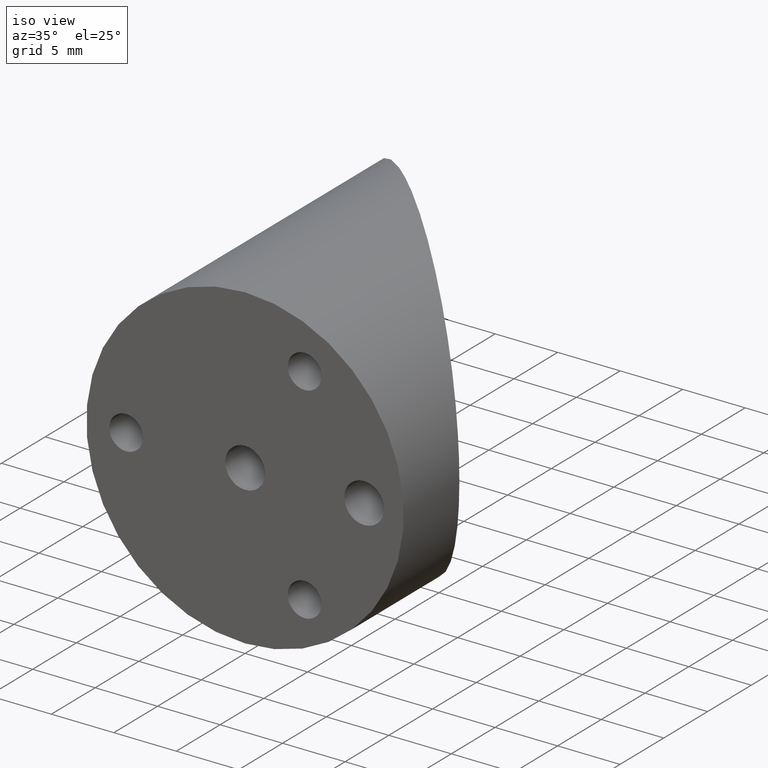
[diagram: clean part render]
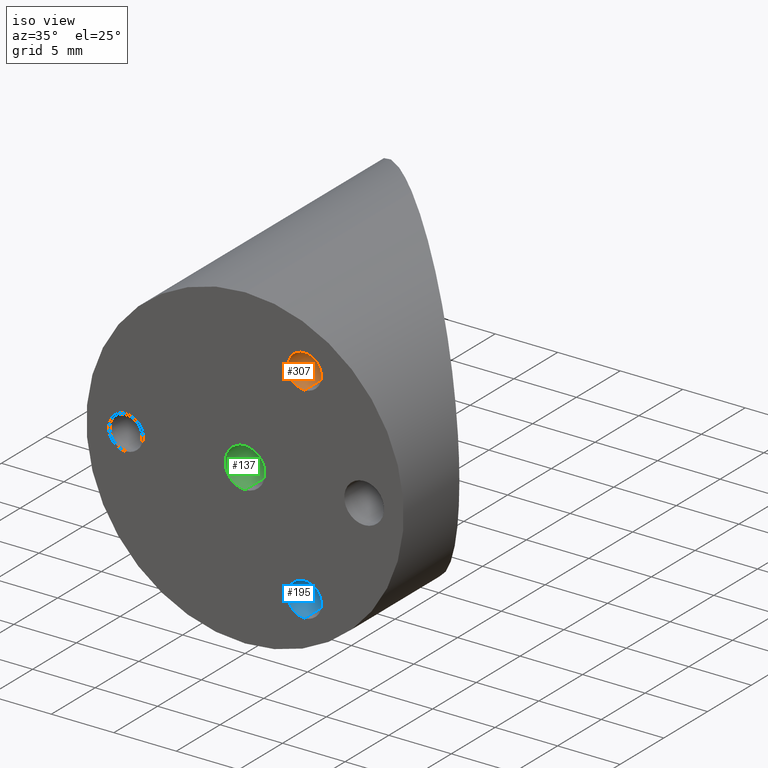
[diagram: same view with three faces highlighted in distinct colors, each labeled with its STEP entity id]
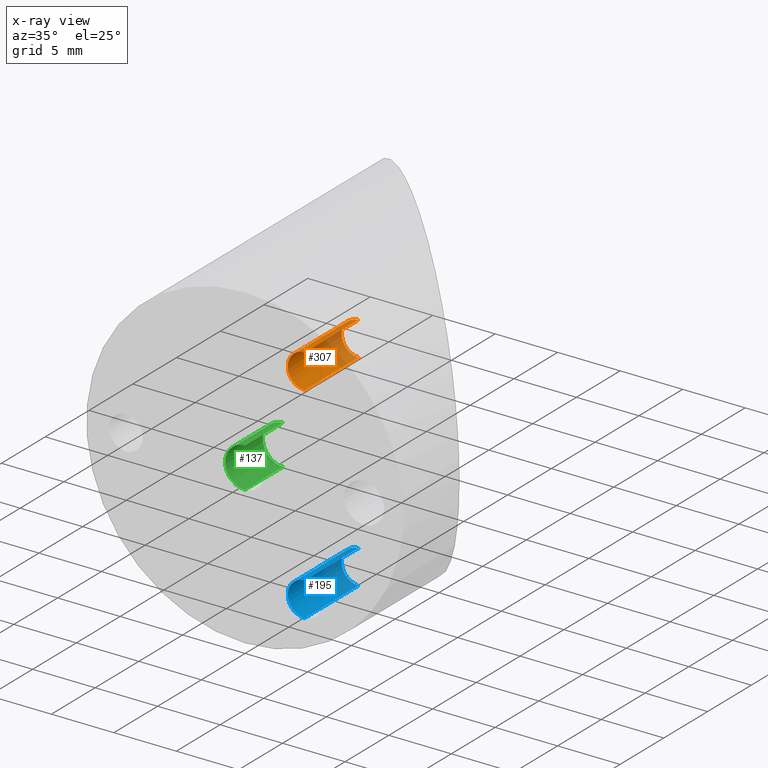
[diagram: x-ray of the same camera — body ghosted, the three highlighted faces saturated]
A machine part, iso view with three faces highlighted in distinct colors.
The next image is the same camera in x-ray (body ghosted, the three faces saturated) — at least one of them is partly hidden behind the body in this view.
Their STEP definitions:

[orange] entity #307 — the highlighted cylindrical surface (edge-blend (fillet) strip) has radius 1.3525 mm, axis along (-0, -1, -0).
#11 = DIRECTION ( 'NONE',  ( -0.0000000000000000000, -1.000000000000000000, -0.0000000000000000000 ) ) ;
#45 = CIRCLE ( 'NONE', #118, 1.352549999999999253 ) ;
#55 = VERTEX_POINT ( 'NONE', #566 ) ;
#83 = VERTEX_POINT ( 'NONE', #156 ) ;
#98 = DIRECTION ( 'NONE',  ( -0.0000000000000000000, -1.000000000000000000, -0.0000000000000000000 ) ) ;
#118 = AXIS2_PLACEMENT_3D ( 'NONE', #397, #98, #153 ) ;
#144 = EDGE_CURVE ( 'NONE', #211, #158, #360, .T. ) ;
#146 = LINE ( 'NONE', #775, #181 ) ;
#153 = DIRECTION ( 'NONE',  ( 0.0000000000000000000, 0.0000000000000000000, -1.000000000000000000 ) ) ;
#156 = CARTESIAN_POINT ( 'NONE',  ( 4.762500000000009948, 2.721777511104993564E-17, 6.896341971046772379 ) ) ;
#158 = VERTEX_POINT ( 'NONE', #271 ) ;
#181 = VECTOR ( 'NONE', #725, 1000.000000000000000 ) ;
#211 = VERTEX_POINT ( 'NONE', #529 ) ;
#221 = EDGE_CURVE ( 'NONE', #55, #83, #146, .T. ) ;
#233 = CARTESIAN_POINT ( 'NONE',  ( 4.762500000000009948, 0.0000000000000000000, 8.248891971046772298 ) ) ;
#245 = CARTESIAN_POINT ( 'NONE',  ( 4.762500000000009948, 6.169999999999999929, 8.248891971046772298 ) ) ;
#246 = CYLINDRICAL_SURFACE ( 'NONE', #286, 1.352549999999999253 ) ;
#265 = ORIENTED_EDGE ( 'NONE', *, *, #144, .T. ) ;
#271 = CARTESIAN_POINT ( 'NONE',  ( 4.762500000000009948, 2.721777511104993564E-17, 9.601441971046771329 ) ) ;
#286 = AXIS2_PLACEMENT_3D ( 'NONE', #233, #736, #362 ) ;
#307 = ADVANCED_FACE ( 'NONE', ( #533 ), #246, .F. ) ;
#340 = DIRECTION ( 'NONE',  ( -0.0000000000000000000, -1.000000000000000000, -0.0000000000000000000 ) ) ;
#360 = LINE ( 'NONE', #670, #506 ) ;
#362 = DIRECTION ( 'NONE',  ( 0.0000000000000000000, 0.0000000000000000000, -1.000000000000000000 ) ) ;
#386 = AXIS2_PLACEMENT_3D ( 'NONE', #245, #11, #741 ) ;
#397 = CARTESIAN_POINT ( 'NONE',  ( 4.762500000000009948, 2.721777511104993564E-17, 8.248891971046772298 ) ) ;
#493 = CIRCLE ( 'NONE', #386, 1.352549999999998365 ) ;
#506 = VECTOR ( 'NONE', #340, 1000.000000000000000 ) ;
#529 = CARTESIAN_POINT ( 'NONE',  ( 4.762500000000009948, 6.169999999999999929, 9.601441971046769552 ) ) ;
#533 = FACE_OUTER_BOUND ( 'NONE', #724, .T. ) ;
#566 = CARTESIAN_POINT ( 'NONE',  ( 4.762500000000009948, 6.169999999999999929, 6.896341971046773267 ) ) ;
#574 = ORIENTED_EDGE ( 'NONE', *, *, #657, .T. ) ;
#587 = EDGE_CURVE ( 'NONE', #211, #55, #493, .T. ) ;
#657 = EDGE_CURVE ( 'NONE', #158, #83, #45, .T. ) ;
#670 = CARTESIAN_POINT ( 'NONE',  ( 4.762500000000009948, 0.0000000000000000000, 9.601441971046771329 ) ) ;
#678 = ORIENTED_EDGE ( 'NONE', *, *, #587, .F. ) ;
#724 = EDGE_LOOP ( 'NONE', ( #678, #265, #574, #764 ) ) ;
#725 = DIRECTION ( 'NONE',  ( -0.0000000000000000000, -1.000000000000000000, -0.0000000000000000000 ) ) ;
#736 = DIRECTION ( 'NONE',  ( -0.0000000000000000000, -1.000000000000000000, -0.0000000000000000000 ) ) ;
#741 = DIRECTION ( 'NONE',  ( 0.0000000000000000000, 0.0000000000000000000, -1.000000000000000000 ) ) ;
#764 = ORIENTED_EDGE ( 'NONE', *, *, #221, .F. ) ;
#775 = CARTESIAN_POINT ( 'NONE',  ( 4.762500000000009948, 0.0000000000000000000, 6.896341971046772379 ) ) ;

[blue] entity #195 — the highlighted cylindrical surface (edge-blend (fillet) strip) has radius 1.3525 mm, axis along (-0, -1, -0).
#14 = DIRECTION ( 'NONE',  ( -0.0000000000000000000, -1.000000000000000000, -0.0000000000000000000 ) ) ;
#37 = ORIENTED_EDGE ( 'NONE', *, *, #90, .F. ) ;
#39 = ORIENTED_EDGE ( 'NONE', *, *, #581, .F. ) ;
#51 = CARTESIAN_POINT ( 'NONE',  ( 4.762500000000009948, 0.0000000000000000000, -8.248891971046772298 ) ) ;
#90 = EDGE_CURVE ( 'NONE', #432, #304, #336, .T. ) ;
#105 = CARTESIAN_POINT ( 'NONE',  ( 4.762500000000009948, 6.169999999999999929, -8.248891971046772298 ) ) ;
#109 = DIRECTION ( 'NONE',  ( 0.0000000000000000000, 0.0000000000000000000, -1.000000000000000000 ) ) ;
#155 = AXIS2_PLACEMENT_3D ( 'NONE', #105, #656, #218 ) ;
#184 = DIRECTION ( 'NONE',  ( -0.0000000000000000000, -1.000000000000000000, -0.0000000000000000000 ) ) ;
#195 = ADVANCED_FACE ( 'NONE', ( #278 ), #345, .F. ) ;
#218 = DIRECTION ( 'NONE',  ( 0.0000000000000000000, 0.0000000000000000000, -1.000000000000000000 ) ) ;
#236 = CARTESIAN_POINT ( 'NONE',  ( 4.762500000000009948, 6.169999999999999929, -9.601441971046769552 ) ) ;
#247 = EDGE_LOOP ( 'NONE', ( #37, #460, #553, #39 ) ) ;
#251 = VECTOR ( 'NONE', #365, 1000.000000000000000 ) ;
#263 = VECTOR ( 'NONE', #184, 1000.000000000000000 ) ;
#278 = FACE_OUTER_BOUND ( 'NONE', #247, .T. ) ;
#280 = EDGE_CURVE ( 'NONE', #432, #645, #388, .T. ) ;
#282 = CARTESIAN_POINT ( 'NONE',  ( 4.762500000000009948, 2.721777511104993564E-17, -9.601441971046771329 ) ) ;
#300 = DIRECTION ( 'NONE',  ( 0.0000000000000000000, 0.0000000000000000000, -1.000000000000000000 ) ) ;
#304 = VERTEX_POINT ( 'NONE', #236 ) ;
#336 = CIRCLE ( 'NONE', #155, 1.352549999999997477 ) ;
#345 = CYLINDRICAL_SURFACE ( 'NONE', #610, 1.352549999999999253 ) ;
#365 = DIRECTION ( 'NONE',  ( -0.0000000000000000000, -1.000000000000000000, -0.0000000000000000000 ) ) ;
#375 = CARTESIAN_POINT ( 'NONE',  ( 4.762500000000009948, 6.169999999999999929, -6.896341971046773267 ) ) ;
#385 = CARTESIAN_POINT ( 'NONE',  ( 4.762500000000009948, 2.721777511104993564E-17, -6.896341971046772379 ) ) ;
#388 = LINE ( 'NONE', #727, #263 ) ;
#432 = VERTEX_POINT ( 'NONE', #375 ) ;
#460 = ORIENTED_EDGE ( 'NONE', *, *, #280, .T. ) ;
#551 = LINE ( 'NONE', #616, #251 ) ;
#553 = ORIENTED_EDGE ( 'NONE', *, *, #560, .T. ) ;
#560 = EDGE_CURVE ( 'NONE', #645, #742, #642, .T. ) ;
#581 = EDGE_CURVE ( 'NONE', #304, #742, #551, .T. ) ;
#594 = AXIS2_PLACEMENT_3D ( 'NONE', #689, #14, #300 ) ;
#610 = AXIS2_PLACEMENT_3D ( 'NONE', #51, #665, #109 ) ;
#616 = CARTESIAN_POINT ( 'NONE',  ( 4.762500000000009948, 0.0000000000000000000, -9.601441971046771329 ) ) ;
#642 = CIRCLE ( 'NONE', #594, 1.352549999999999253 ) ;
#645 = VERTEX_POINT ( 'NONE', #385 ) ;
#656 = DIRECTION ( 'NONE',  ( -0.0000000000000000000, -1.000000000000000000, -0.0000000000000000000 ) ) ;
#665 = DIRECTION ( 'NONE',  ( -0.0000000000000000000, -1.000000000000000000, -0.0000000000000000000 ) ) ;
#689 = CARTESIAN_POINT ( 'NONE',  ( 4.762500000000009948, 2.721777511104993564E-17, -8.248891971046772298 ) ) ;
#727 = CARTESIAN_POINT ( 'NONE',  ( 4.762500000000009948, 0.0000000000000000000, -6.896341971046772379 ) ) ;
#742 = VERTEX_POINT ( 'NONE', #282 ) ;

[green] entity #137 — the highlighted cylindrical surface (edge-blend (fillet) strip) has radius 1.594 mm, axis along (-0, -1, -0).
#6 = AXIS2_PLACEMENT_3D ( 'NONE', #440, #622, #628 ) ;
#21 = EDGE_CURVE ( 'NONE', #192, #497, #739, .T. ) ;
#27 = VERTEX_POINT ( 'NONE', #196 ) ;
#40 = EDGE_LOOP ( 'NONE', ( #687, #220, #517, #391 ) ) ;
#41 = DIRECTION ( 'NONE',  ( -0.0000000000000000000, -1.000000000000000000, -0.0000000000000000000 ) ) ;
#58 = AXIS2_PLACEMENT_3D ( 'NONE', #462, #41, #520 ) ;
#79 = VECTOR ( 'NONE', #316, 1000.000000000000000 ) ;
#137 = ADVANCED_FACE ( 'NONE', ( #777 ), #643, .F. ) ;
#192 = VERTEX_POINT ( 'NONE', #473 ) ;
#196 = CARTESIAN_POINT ( 'NONE',  ( 0.0000000000000000000, 7.960204194457993925E-19, -1.593999999999999417 ) ) ;
#198 = CARTESIAN_POINT ( 'NONE',  ( 0.0000000000000000000, 0.0000000000000000000, -1.593999999999998973 ) ) ;
#199 = CIRCLE ( 'NONE', #6, 1.593999999999999417 ) ;
#220 = ORIENTED_EDGE ( 'NONE', *, *, #706, .T. ) ;
#309 = DIRECTION ( 'NONE',  ( 0.0000000000000000000, 0.0000000000000000000, -1.000000000000000000 ) ) ;
#316 = DIRECTION ( 'NONE',  ( -0.0000000000000000000, -1.000000000000000000, -0.0000000000000000000 ) ) ;
#332 = DIRECTION ( 'NONE',  ( -0.0000000000000000000, -1.000000000000000000, -0.0000000000000000000 ) ) ;
#387 = CARTESIAN_POINT ( 'NONE',  ( 1.952086997840880388E-16, 7.960204194457993925E-19, 1.593999999999999417 ) ) ;
#391 = ORIENTED_EDGE ( 'NONE', *, *, #625, .F. ) ;
#410 = VECTOR ( 'NONE', #332, 1000.000000000000000 ) ;
#440 = CARTESIAN_POINT ( 'NONE',  ( 0.0000000000000000000, 7.960204194457993925E-19, 0.0000000000000000000 ) ) ;
#446 = CARTESIAN_POINT ( 'NONE',  ( 0.0000000000000000000, 4.320000000000000284, 0.0000000000000000000 ) ) ;
#462 = CARTESIAN_POINT ( 'NONE',  ( 0.0000000000000000000, 0.0000000000000000000, 0.0000000000000000000 ) ) ;
#473 = CARTESIAN_POINT ( 'NONE',  ( 1.952086997840879648E-16, 4.320000000000000284, 1.593999999999998751 ) ) ;
#485 = LINE ( 'NONE', #198, #79 ) ;
#497 = VERTEX_POINT ( 'NONE', #624 ) ;
#517 = ORIENTED_EDGE ( 'NONE', *, *, #576, .T. ) ;
#518 = VERTEX_POINT ( 'NONE', #387 ) ;
#520 = DIRECTION ( 'NONE',  ( 0.0000000000000000000, 0.0000000000000000000, -1.000000000000000000 ) ) ;
#530 = LINE ( 'NONE', #716, #410 ) ;
#576 = EDGE_CURVE ( 'NONE', #518, #27, #199, .T. ) ;
#622 = DIRECTION ( 'NONE',  ( -0.0000000000000000000, -1.000000000000000000, -0.0000000000000000000 ) ) ;
#624 = CARTESIAN_POINT ( 'NONE',  ( 0.0000000000000000000, 4.320000000000000284, -1.593999999999998751 ) ) ;
#625 = EDGE_CURVE ( 'NONE', #497, #27, #485, .T. ) ;
#628 = DIRECTION ( 'NONE',  ( 0.0000000000000000000, 0.0000000000000000000, -1.000000000000000000 ) ) ;
#643 = CYLINDRICAL_SURFACE ( 'NONE', #58, 1.593999999999998973 ) ;
#687 = ORIENTED_EDGE ( 'NONE', *, *, #21, .F. ) ;
#692 = DIRECTION ( 'NONE',  ( -0.0000000000000000000, -1.000000000000000000, -0.0000000000000000000 ) ) ;
#706 = EDGE_CURVE ( 'NONE', #192, #518, #530, .T. ) ;
#716 = CARTESIAN_POINT ( 'NONE',  ( 1.952086997840879895E-16, 0.0000000000000000000, 1.593999999999998973 ) ) ;
#739 = CIRCLE ( 'NONE', #794, 1.593999999999998751 ) ;
#777 = FACE_OUTER_BOUND ( 'NONE', #40, .T. ) ;
#794 = AXIS2_PLACEMENT_3D ( 'NONE', #446, #692, #309 ) ;